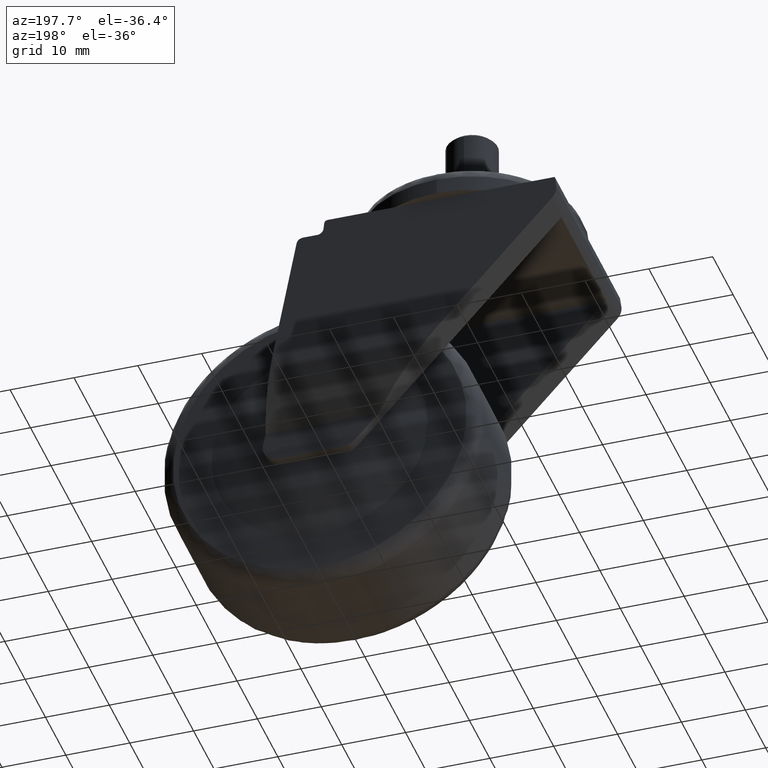
[diagram: clean part render]
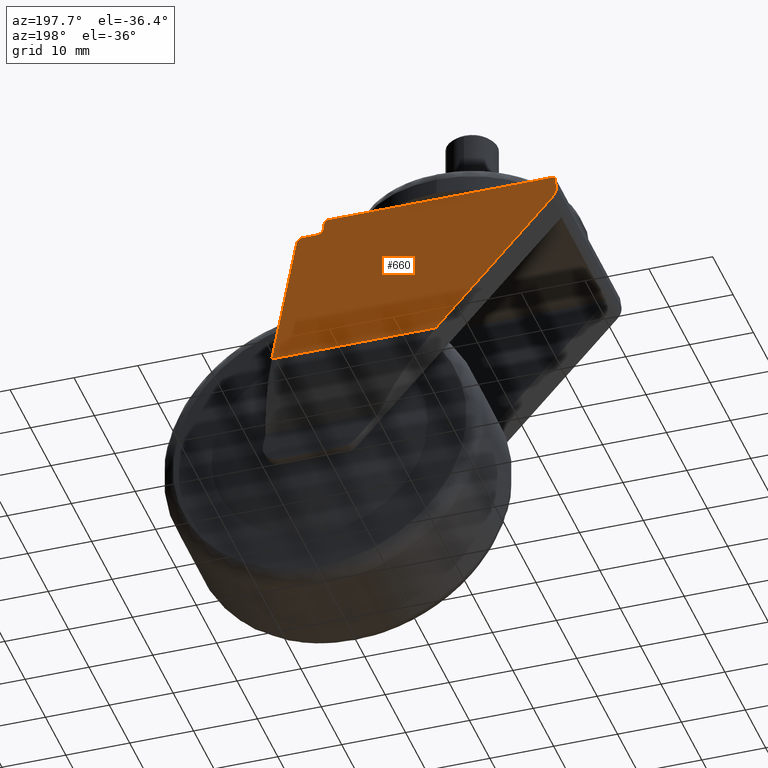
[diagram: same view with one face highlighted and labeled with its STEP entity id]
A machine part, auxiliary view. The second image highlights one B-rep face of the part: STEP entity #660.
In plain terms, the highlighted planar face has unit normal (0, -1, 0).
Its self-contained STEP definition (entity closure, byte-faithful):
#91=CARTESIAN_POINT('',(22.375318074993629,15.999999999936335,-7.726464443858050));
#92=VERTEX_POINT('',#91);
#156=CARTESIAN_POINT('',(26.264550965781424,15.999999999936334,-28.277068329261155));
#157=VERTEX_POINT('',#156);
#165=CARTESIAN_POINT('',(26.264550965781424,15.999999999936334,-28.277068329261155));
#166=DIRECTION('',(-0.185950789084049,8.493062E-017,0.982559058804619));
#167=VECTOR('',#166,20.915387936481856);
#168=LINE('',#165,#167);
#169=EDGE_CURVE('',#157,#92,#168,.T.);
#179=CARTESIAN_POINT('',(21.392759818221748,15.999999999936335,-6.912415897413895));
#180=VERTEX_POINT('',#179);
#181=CARTESIAN_POINT('',(21.392759818221752,15.999999999936335,-7.912415081144673));
#182=DIRECTION('',(1.540744E-033,-1.0,6.123234E-017));
#183=DIRECTION('',(0.982559058806723,1.138620E-017,0.185950789072931));
#184=AXIS2_PLACEMENT_3D('',#181,#182,#183);
#185=CIRCLE('',#184,0.999999183728617);
#186=EDGE_CURVE('',#92,#180,#185,.T.);
#212=CARTESIAN_POINT('',(19.161870972600809,15.999999999936335,-6.912415897424354));
#213=VERTEX_POINT('',#212);
#214=CARTESIAN_POINT('',(21.392759818221748,15.999999999936335,-6.912415897413895));
#215=DIRECTION('',(-1.0,0.0,-5.299875E-012));
#216=VECTOR('',#215,2.230888845620939);
#217=LINE('',#214,#216);
#218=EDGE_CURVE('',#180,#213,#217,.T.);
#243=CARTESIAN_POINT('',(18.167907019151244,15.999999999936335,-6.022073385073555));
#244=VERTEX_POINT('',#243);
#245=CARTESIAN_POINT('',(19.161870972600813,15.999999999936335,-5.912422015659105));
#246=DIRECTION('',(0.0,1.0,-6.123234E-017));
#247=DIRECTION('',(-0.993970034789751,-6.714251E-018,-0.109652040291374));
#248=AXIS2_PLACEMENT_3D('',#245,#246,#247);
#249=CIRCLE('',#248,0.999993881765253);
#250=EDGE_CURVE('',#213,#244,#249,.T.);
#276=CARTESIAN_POINT('',(18.049105926018456,15.999999999936335,-4.945169331482476));
#277=VERTEX_POINT('',#276);
#278=CARTESIAN_POINT('',(18.167907019151244,15.999999999936335,-6.022073385073555));
#279=DIRECTION('',(-0.109652040291323,0.0,0.993970034789757));
#280=VECTOR('',#279,1.083437141864005);
#281=LINE('',#278,#280);
#282=EDGE_CURVE('',#244,#277,#281,.T.);
#307=CARTESIAN_POINT('',(17.499995637430402,15.999999999936335,-4.499994252981197));
#308=VERTEX_POINT('',#307);
#309=CARTESIAN_POINT('',(17.499995637430402,15.999999999936335,-5.061237439857451));
#310=DIRECTION('',(0.0,-1.0,6.123234E-017));
#311=DIRECTION('',(1.0,0.0,0.0));
#312=AXIS2_PLACEMENT_3D('',#309,#310,#311);
#313=CIRCLE('',#312,0.561243186876141);
#314=EDGE_CURVE('',#277,#308,#313,.T.);
#340=CARTESIAN_POINT('',(-18.031204514500132,15.999999999936335,-4.499994252981197));
#341=VERTEX_POINT('',#340);
#342=CARTESIAN_POINT('',(17.499995637430402,15.999999999936335,-4.499994252981197));
#343=DIRECTION('',(-1.0,0.0,0.0));
#344=VECTOR('',#343,35.531200151930534);
#345=LINE('',#342,#344);
#346=EDGE_CURVE('',#308,#341,#345,.T.);
#371=CARTESIAN_POINT('',(-18.267747011785104,15.999999999936335,-6.174286333161946));
#372=VERTEX_POINT('',#371);
#373=CARTESIAN_POINT('',(-18.031204514500132,15.999999999936335,-4.499994252981197));
#374=DIRECTION('',(-0.139889922562157,0.0,-0.990167061442438));
#375=VECTOR('',#374,1.690918780656774);
#376=LINE('',#373,#375);
#377=EDGE_CURVE('',#341,#372,#376,.T.);
#402=CARTESIAN_POINT('',(-17.643730551919361,15.999999999936335,-8.203984357693118));
#403=VERTEX_POINT('',#402);
#404=CARTESIAN_POINT('',(-15.792331337932408,15.999999999936335,-6.524010859871622));
#405=DIRECTION('',(0.0,-1.0,6.123234E-017));
#406=DIRECTION('',(-0.740560277869410,-4.114752E-017,-0.671989936563027));
#407=AXIS2_PLACEMENT_3D('',#404,#405,#406);
#408=CIRCLE('',#407,2.499998000586017);
#409=EDGE_CURVE('',#372,#403,#408,.T.);
#493=CARTESIAN_POINT('',(0.570736018565555,15.999999999936334,-28.277068329261176));
#494=VERTEX_POINT('',#493);
#495=CARTESIAN_POINT('',(-17.643730551919361,15.999999999936334,-8.203984357693116));
#496=DIRECTION('',(0.671989936563111,0.0,-0.740560277869335));
#497=VECTOR('',#496,27.105266878909994);
#498=LINE('',#495,#497);
#499=EDGE_CURVE('',#403,#494,#498,.T.);
#637=CARTESIAN_POINT('',(-23.001163089726106,15.999999999936332,-48.376204442489779));
#638=DIRECTION('',(0.0,-1.0,0.0));
#639=DIRECTION('',(1.0,0.0,0.0));
#640=AXIS2_PLACEMENT_3D('',#637,#638,#639);
#641=PLANE('',#640);
#642=ORIENTED_EDGE('',*,*,#169,.F.);
#643=CARTESIAN_POINT('',(26.264550965781424,15.999999999936334,-28.277068329261205));
#644=DIRECTION('',(-1.0,0.0,0.0));
#645=VECTOR('',#644,25.693814947215870);
#646=LINE('',#643,#645);
#647=EDGE_CURVE('',#157,#494,#646,.T.);
#648=ORIENTED_EDGE('',*,*,#647,.T.);
#649=ORIENTED_EDGE('',*,*,#499,.F.);
#650=ORIENTED_EDGE('',*,*,#409,.F.);
#651=ORIENTED_EDGE('',*,*,#377,.F.);
#652=ORIENTED_EDGE('',*,*,#346,.F.);
#653=ORIENTED_EDGE('',*,*,#314,.F.);
#654=ORIENTED_EDGE('',*,*,#282,.F.);
#655=ORIENTED_EDGE('',*,*,#250,.F.);
#656=ORIENTED_EDGE('',*,*,#218,.F.);
#657=ORIENTED_EDGE('',*,*,#186,.F.);
#658=EDGE_LOOP('',(#642,#648,#649,#650,#651,#652,#653,#654,#655,#656,#657));
#659=FACE_OUTER_BOUND('',#658,.T.);
#660=ADVANCED_FACE('',(#659),#641,.F.);